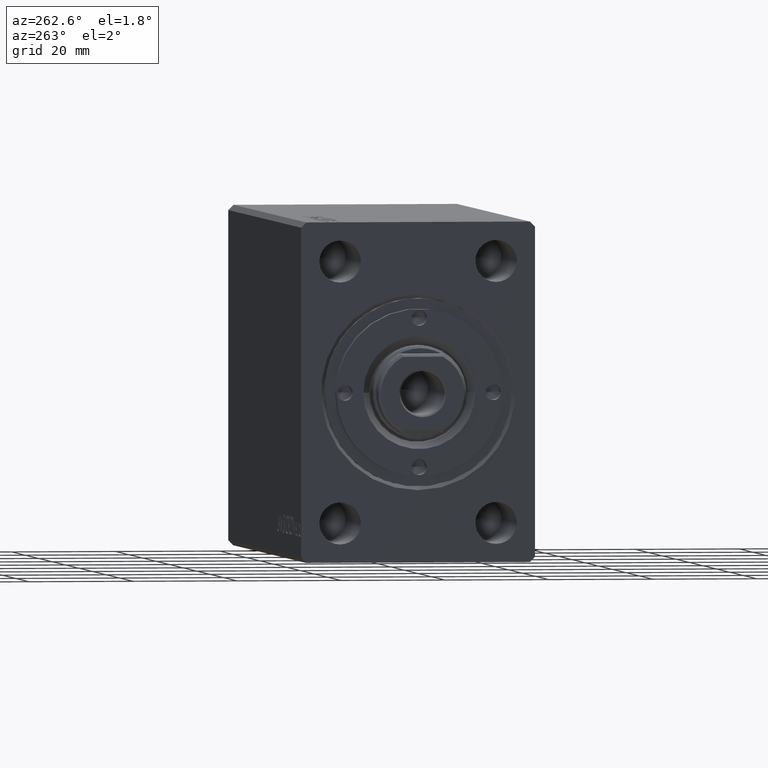
[diagram: clean part render]
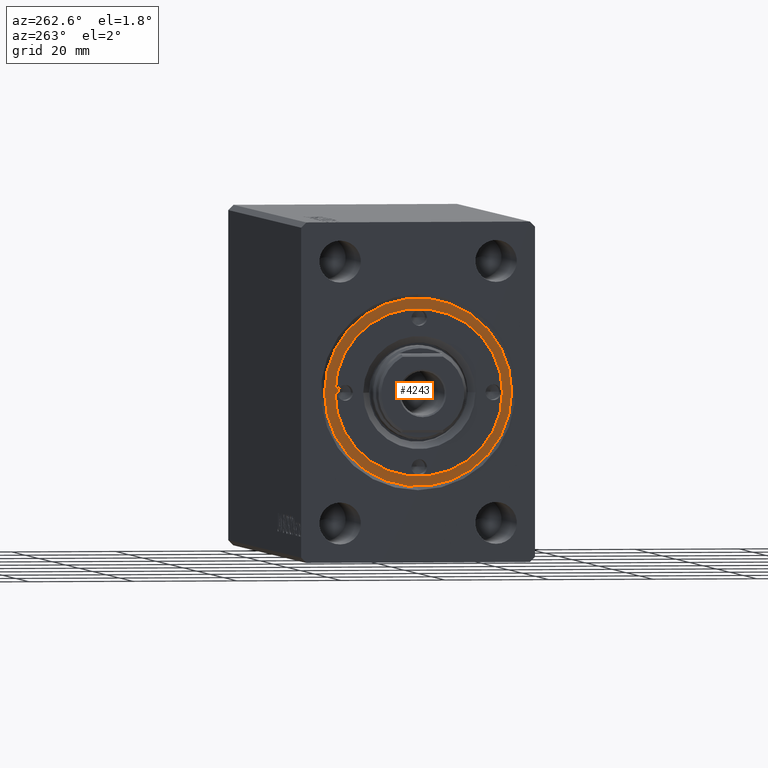
[diagram: same view with one face highlighted and labeled with its STEP entity id]
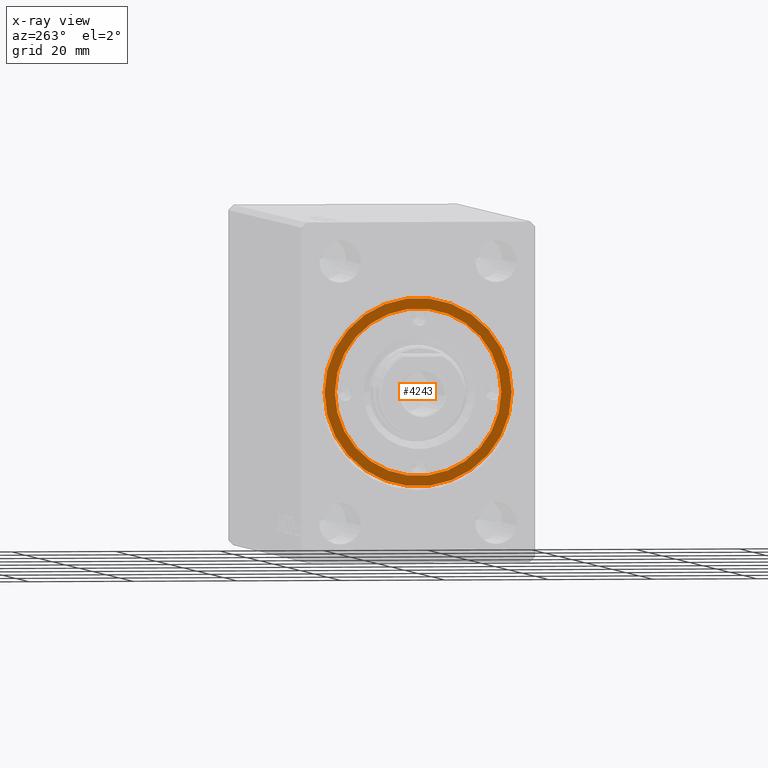
[diagram: x-ray of the same camera — body ghosted, the highlighted face saturated]
A machine part, auxiliary view. The second image highlights one B-rep face of the part: STEP entity #4243.
The next image is the same camera in x-ray: the body ghosted, the highlighted face saturated — about 0% of this face is hidden behind the body in this view.
In plain terms, the highlighted planar face has unit normal (-1, 0, 0).
Its self-contained STEP definition (entity closure, byte-faithful):
#90 = CARTESIAN_POINT ( 'NONE',  ( 0.000000000000000000, 0.000000000000000000, 5.200000000000000178 ) ) ;
#642 = EDGE_CURVE ( 'NONE', #7443, #25610, #6300, .T. ) ;
#921 = DIRECTION ( 'NONE',  ( 0.000000000000000000, 0.000000000000000000, 1.000000000000000000 ) ) ;
#1036 = EDGE_CURVE ( 'NONE', #30967, #19296, #16269, .T. ) ;
#1929 = DIRECTION ( 'NONE',  ( 0.000000000000000000, 0.000000000000000000, 1.000000000000000000 ) ) ;
#3949 = DIRECTION ( 'NONE',  ( 0.000000000000000000, 0.000000000000000000, 1.000000000000000000 ) ) ;
#4243 = ADVANCED_FACE ( 'NONE', ( #38396, #24568 ), #38177, .T. ) ;
#6300 = CIRCLE ( 'NONE', #9172, 16.00000000000000000 ) ;
#6682 = AXIS2_PLACEMENT_3D ( 'NONE', #90, #13736, #37138 ) ;
#7443 = VERTEX_POINT ( 'NONE', #29230 ) ;
#7475 = CARTESIAN_POINT ( 'NONE',  ( 0.000000000000000000, 0.000000000000000000, 5.200000000000000178 ) ) ;
#7639 = CARTESIAN_POINT ( 'NONE',  ( 0.000000000000000000, 0.000000000000000000, 5.200000000000000178 ) ) ;
#9172 = AXIS2_PLACEMENT_3D ( 'NONE', #37850, #3949, #14872 ) ;
#10603 = DIRECTION ( 'NONE',  ( 1.000000000000000000, 0.000000000000000000, 0.000000000000000000 ) ) ;
#13736 = DIRECTION ( 'NONE',  ( 0.000000000000000000, 0.000000000000000000, 1.000000000000000000 ) ) ;
#14554 = DIRECTION ( 'NONE',  ( 1.000000000000000000, 0.000000000000000000, -0.000000000000000000 ) ) ;
#14567 = ORIENTED_EDGE ( 'NONE', *, *, #1036, .T. ) ;
#14872 = DIRECTION ( 'NONE',  ( 1.000000000000000000, 0.000000000000000000, 0.000000000000000000 ) ) ;
#15246 = EDGE_CURVE ( 'NONE', #19296, #30967, #41470, .T. ) ;
#15847 = ORIENTED_EDGE ( 'NONE', *, *, #642, .F. ) ;
#16269 = CIRCLE ( 'NONE', #24087, 18.00000000000000000 ) ;
#17516 = DIRECTION ( 'NONE',  ( 0.000000000000000000, 0.000000000000000000, 1.000000000000000000 ) ) ;
#19181 = EDGE_LOOP ( 'NONE', ( #35749, #15847 ) ) ;
#19296 = VERTEX_POINT ( 'NONE', #23757 ) ;
#19355 = CARTESIAN_POINT ( 'NONE',  ( 0.000000000000000000, 0.000000000000000000, 5.200000000000000178 ) ) ;
#19379 = EDGE_CURVE ( 'NONE', #25610, #7443, #25193, .T. ) ;
#20379 = CARTESIAN_POINT ( 'NONE',  ( -18.00000000000000000, 0.000000000000000000, 5.200000000000000178 ) ) ;
#20708 = ORIENTED_EDGE ( 'NONE', *, *, #15246, .T. ) ;
#23757 = CARTESIAN_POINT ( 'NONE',  ( 18.00000000000000000, 2.204364238465235428E-15, 5.200000000000000178 ) ) ;
#24087 = AXIS2_PLACEMENT_3D ( 'NONE', #7475, #17516, #10603 ) ;
#24568 = FACE_OUTER_BOUND ( 'NONE', #34004, .T. ) ;
#25193 = CIRCLE ( 'NONE', #6682, 16.00000000000000000 ) ;
#25610 = VERTEX_POINT ( 'NONE', #41304 ) ;
#25786 = AXIS2_PLACEMENT_3D ( 'NONE', #19355, #1929, #33167 ) ;
#29230 = CARTESIAN_POINT ( 'NONE',  ( 16.00000000000000000, 1.959434878635765131E-15, 5.200000000000000178 ) ) ;
#30967 = VERTEX_POINT ( 'NONE', #20379 ) ;
#33167 = DIRECTION ( 'NONE',  ( 1.000000000000000000, 0.000000000000000000, 0.000000000000000000 ) ) ;
#34004 = EDGE_LOOP ( 'NONE', ( #14567, #20708 ) ) ;
#35749 = ORIENTED_EDGE ( 'NONE', *, *, #19379, .F. ) ;
#37138 = DIRECTION ( 'NONE',  ( 1.000000000000000000, 0.000000000000000000, 0.000000000000000000 ) ) ;
#37850 = CARTESIAN_POINT ( 'NONE',  ( 0.000000000000000000, 0.000000000000000000, 5.200000000000000178 ) ) ;
#38177 = PLANE ( 'NONE',  #43428 ) ;
#38396 = FACE_BOUND ( 'NONE', #19181, .T. ) ;
#41304 = CARTESIAN_POINT ( 'NONE',  ( -16.00000000000000000, 0.000000000000000000, 5.200000000000000178 ) ) ;
#41470 = CIRCLE ( 'NONE', #25786, 18.00000000000000000 ) ;
#43428 = AXIS2_PLACEMENT_3D ( 'NONE', #7639, #921, #14554 ) ;